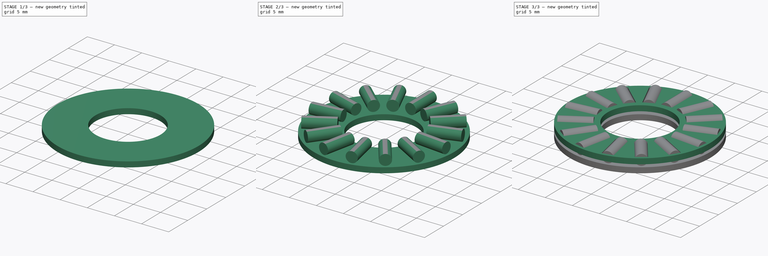
[diagram: build sequence overview — one tinted view per stage of 3, left to right]
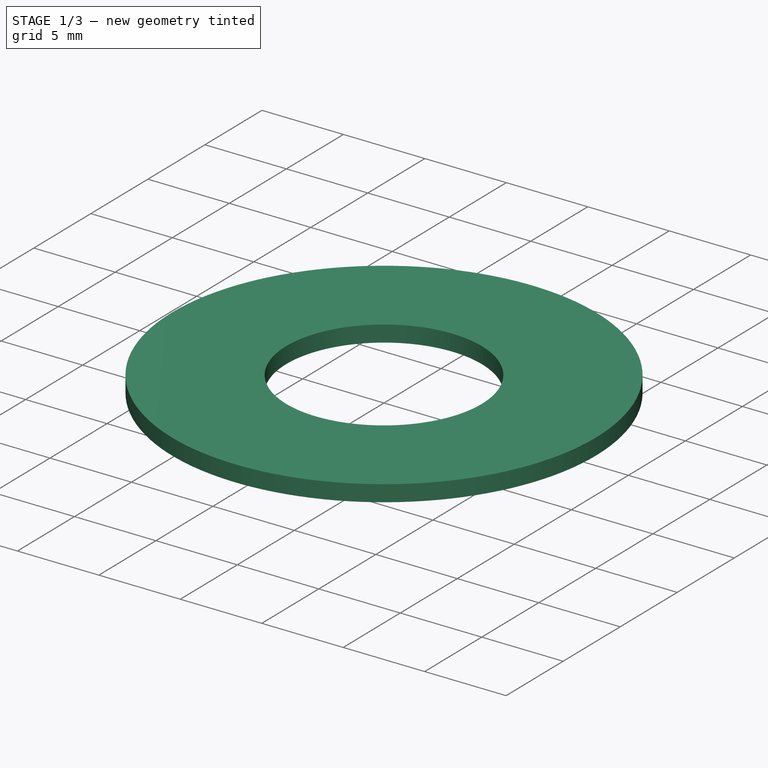
[diagram: stage 1 of 3 — iso view after this stage's code; geometry added in this stage tinted green]
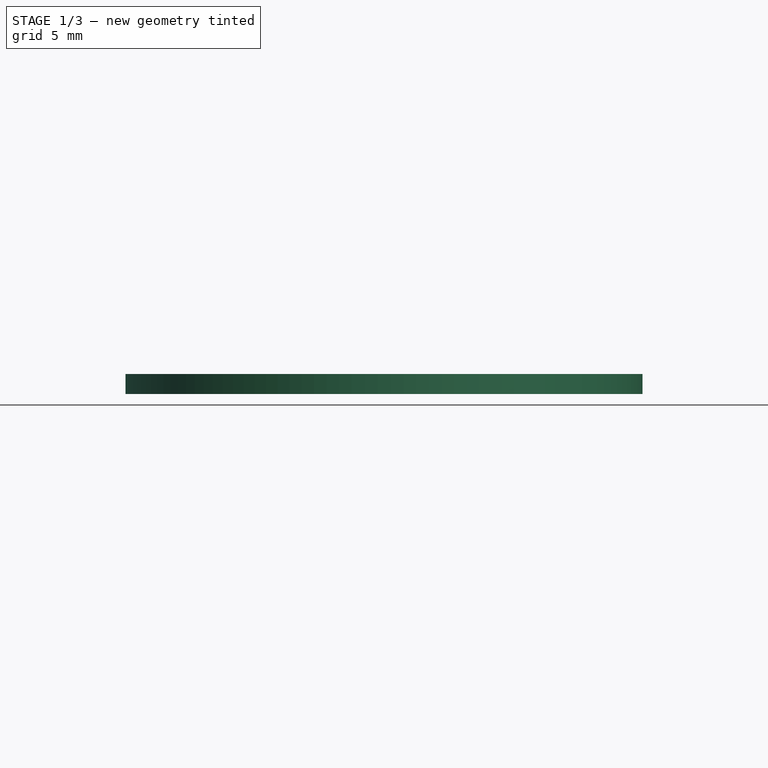
[diagram: stage 1 of 3 — front view after this stage's code; geometry added in this stage tinted green]
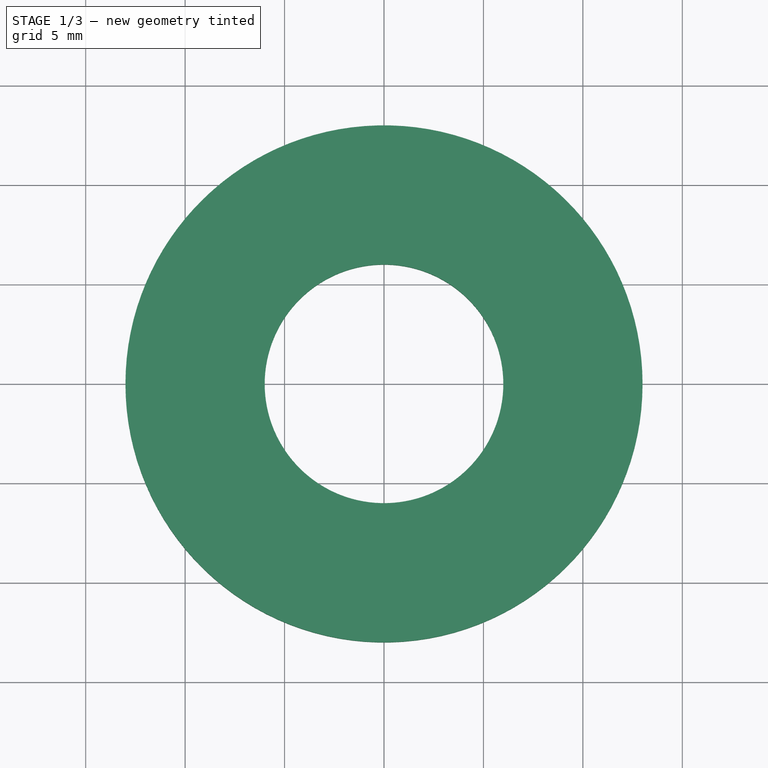
[diagram: stage 1 of 3 — top view after this stage's code; geometry added in this stage tinted green]
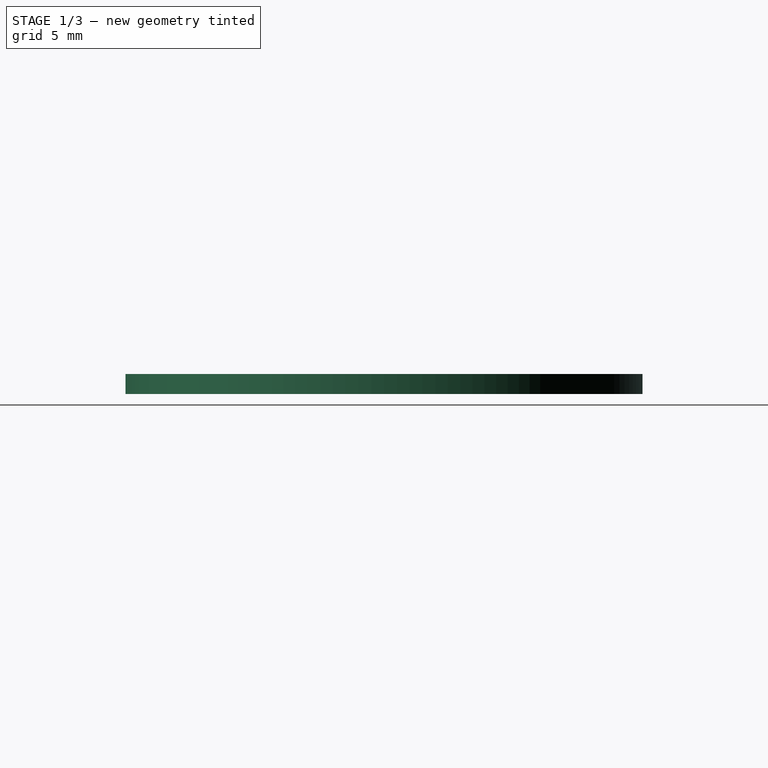
[diagram: stage 1 of 3 — right view after this stage's code; geometry added in this stage tinted green]
FCSTD DOCUMENT  (FreeCAD 0.19R24291 (Git))
Label: parametric_axial_bearing
License: All rights reserved
LicenseURL: http://en.wikipedia.org/wiki/All_rights_reserved
objects: Part::FeaturePython×3, Sketcher::SketchObject×2, Spreadsheet::Sheet×1, PartDesign::Pad×1, PartDesign::Pocket×1, PartDesign::PolarPattern×1, PartDesign::Body×1, Part::Cylinder×1
note: 12 computed .brp shape members not serialized (recipe doc carries the construction recipe); baked Part::Feature solids carry a one-line shape summary decoded from their .brp

FEATURE [Spreadsheet::Sheet] Spreadsheet
  cells = B2=D; C2(D)=26; B3=d; C3(d)=12; B4=Dw; C4(Dw)=2; B5=Ea; C5(Ea)=14; B6=Eb; C6(Eb)=25; B7=w; C7(w)=1; B8=n; C8(n)=15; D8=(Number of cylinders)
FEATURE [Sketcher::SketchObject] Sketch
  FullyConstrained = true
  MapMode = 5
  Support = -> [XY_Plane]
  expr: Constraints[2] = Spreadsheet.d / 2
  expr: Constraints[3] = Spreadsheet.D / 2
  sketch-geometry (2):
    g0: Circle CenterX=0 CenterY=0 CenterZ=0 NormalX=0 NormalY=0 NormalZ=1 AngleXU=0 Radius=13
    g1: Circle CenterX=0 CenterY=0 CenterZ=0 NormalX=0 NormalY=0 NormalZ=1 AngleXU=0 Radius=6
  constraints (4):
    c: Coincident(g0,g-1)
    c: Coincident(g1,g-1)
    c: Radius(g1) = 6
    c: Radius(g0) = 13
FEATURE [PartDesign::Pad] Pad
  AllowMultiFace = false
  Direction = (1,1,1)
  Length = 1
  Length2 = 100
  Midplane = true
  Profile = -> Sketch
  Refine = true
  Type = 0
  expr: Length = Spreadsheet.w
FEATURE [Part::FeaturePython] Clone  label="TopWasher"  # Draft clone (typed FeaturePython)
  AttacherType = Attacher::AttachEngine3D
  Fuse = false
  Objects = -> [Pad]
  Placement = pos=(0,0,1.5) rot=(0,0,1;0rad)
  Scale = (1,1,1)
  expr: .Placement.Base.z = Spreadsheet.w / 2 + Spreadsheet.Dw / 2
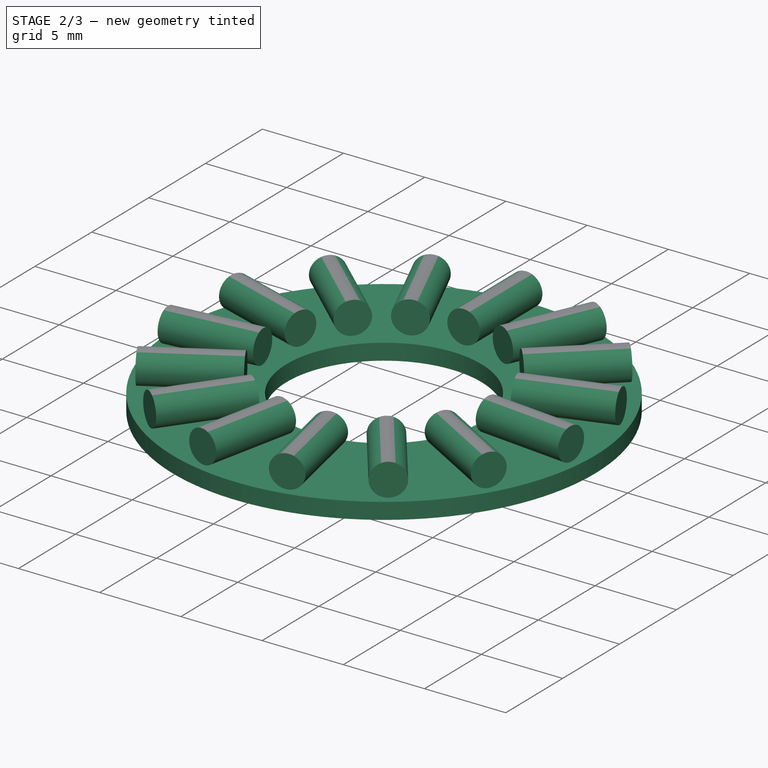
[diagram: stage 2 of 3 — iso view after this stage's code; geometry added in this stage tinted green]
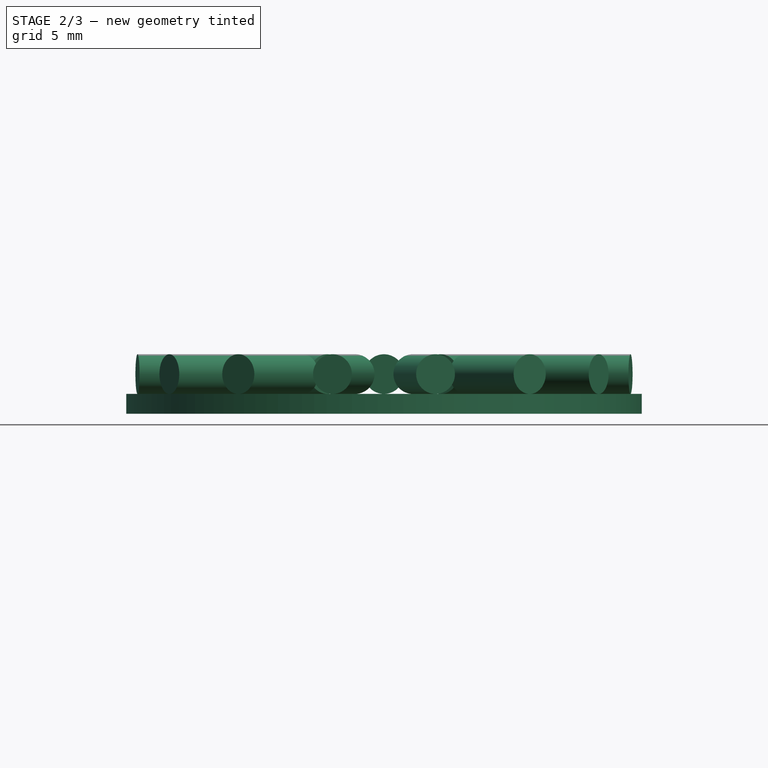
[diagram: stage 2 of 3 — front view after this stage's code; geometry added in this stage tinted green]
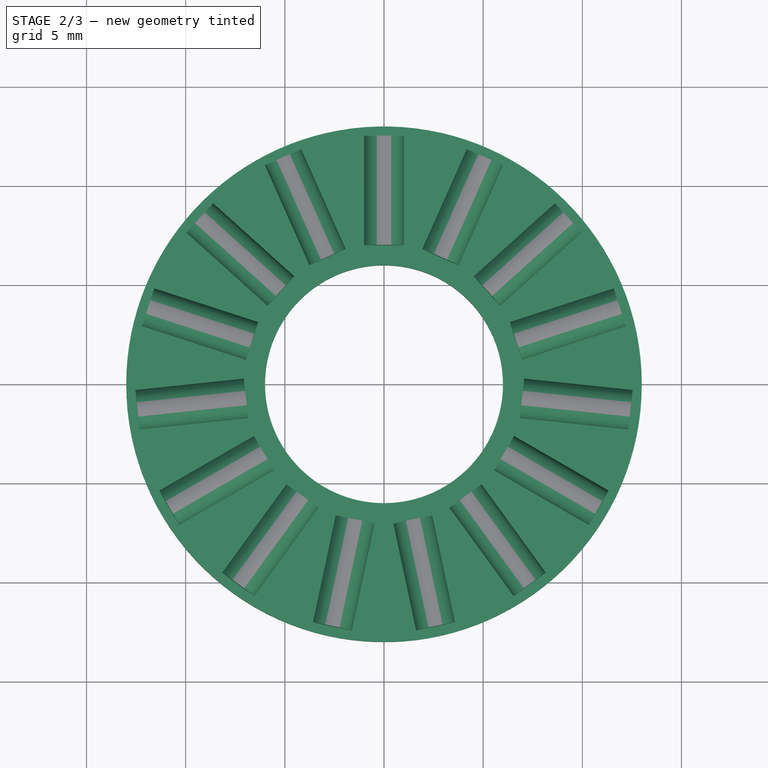
[diagram: stage 2 of 3 — top view after this stage's code; geometry added in this stage tinted green]
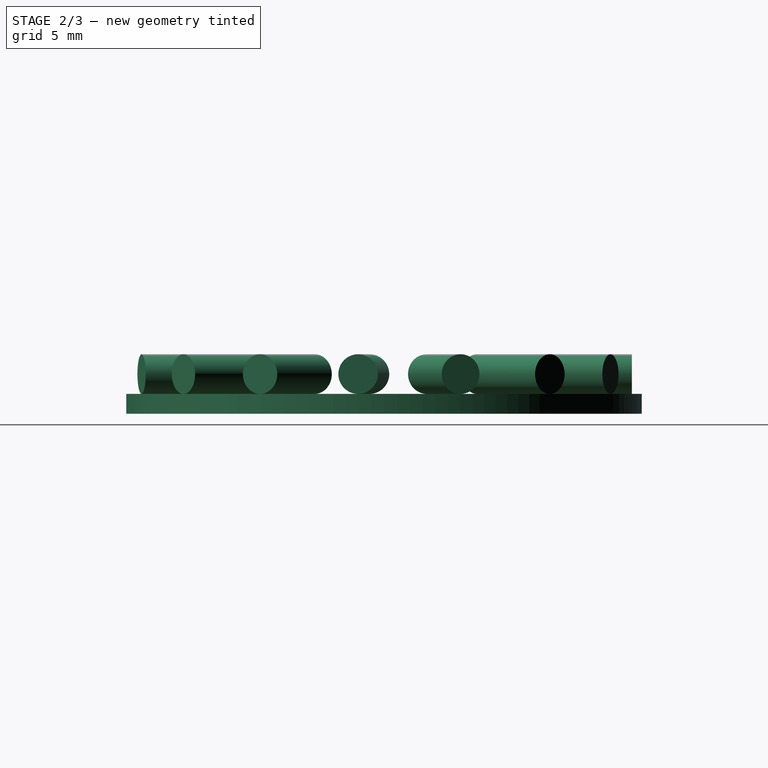
[diagram: stage 2 of 3 — right view after this stage's code; geometry added in this stage tinted green]
FEATURE [PartDesign::Body] Body  label="BearingBody"
  Group = -> [Sketch,Pad,Sketch001,Pocket,PolarPattern]
  Origin = -> Origin
  Tip = -> PolarPattern
FEATURE [Part::Cylinder] Cylinder
  Angle = 360
  AttacherType = Attacher::AttachEngine3D
  Height = 5.5
  Placement = pos=(0,7,0) rot=(-1,0,0;1.5708rad)
  Radius = 1
  expr: Radius = Spreadsheet.Dw / 2
  expr: Height = (Spreadsheet.Eb - Spreadsheet.Ea) / 2
  expr: .Placement.Base.y = Spreadsheet.Ea / 2
FEATURE [Part::FeaturePython] Array  label="Cylinders"  # Draft array (typed FeaturePython)
  Angle = 360
  ArrayType = 1
  Axis = (0,0,1)
  Base = -> Cylinder
  Center = (0,0,0)
  Fuse = false
  IntervalAxis = (0,0,0)
  IntervalX = (1,0,0)
  IntervalY = (0,1,0)
  IntervalZ = (0,0,0)
  NumberPolar = 15
  NumberX = 2
  NumberY = 2
  NumberZ = 1
  expr: NumberPolar = Spreadsheet.n
FEATURE [Part::FeaturePython] Clone001  label="BottomWasher"  # Draft clone (typed FeaturePython)
  AttacherType = Attacher::AttachEngine3D
  Fuse = false
  Objects = -> [Clone]
  Placement = pos=(0,0,-1.5) rot=(0,0,1;0rad)
  Scale = (1,1,1)
  expr: .Placement.Base.z = -(Spreadsheet.w / 2 + Spreadsheet.Dw / 2)
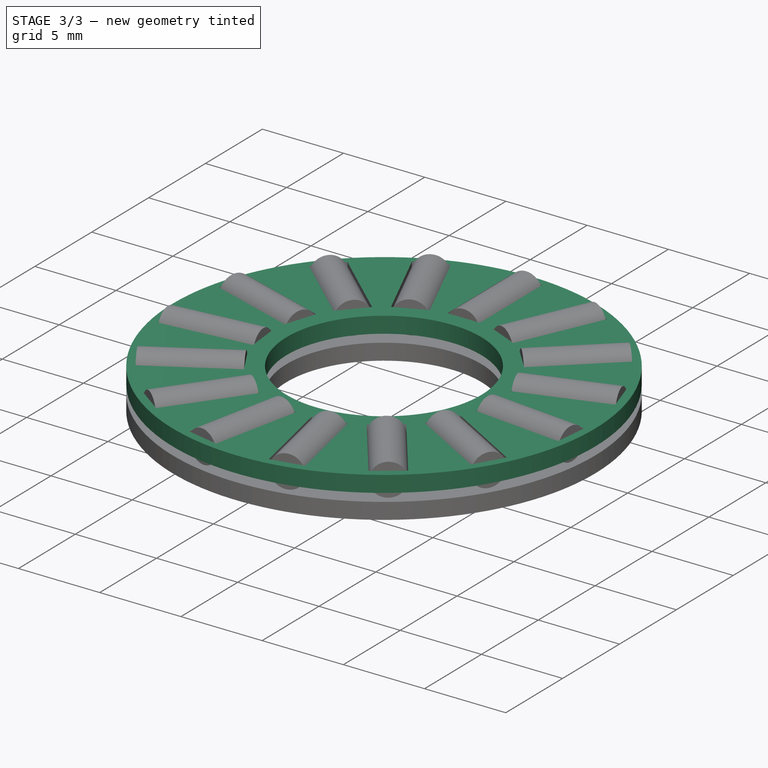
[diagram: stage 3 of 3 — iso view after this stage's code; geometry added in this stage tinted green]
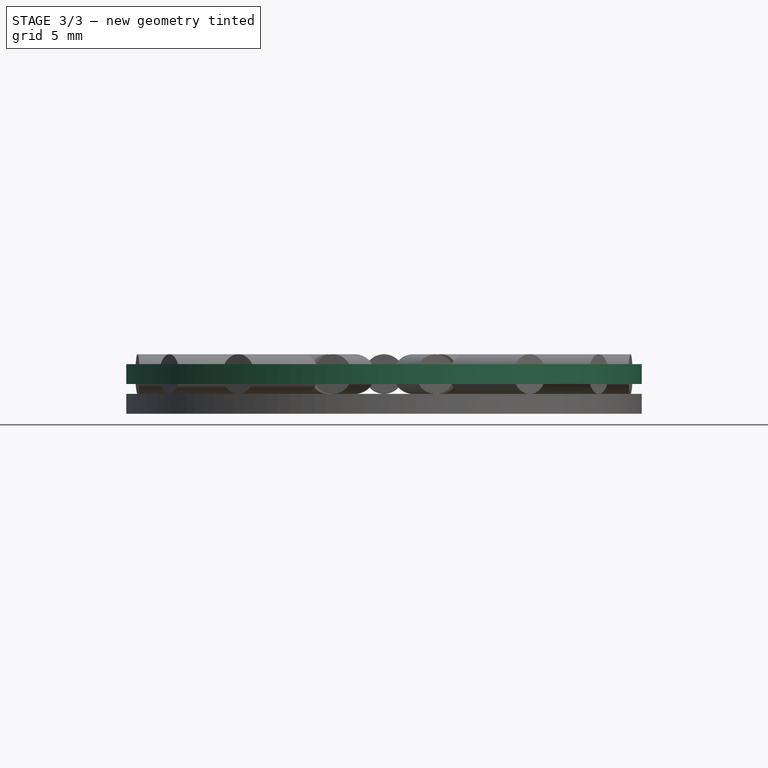
[diagram: stage 3 of 3 — front view after this stage's code; geometry added in this stage tinted green]
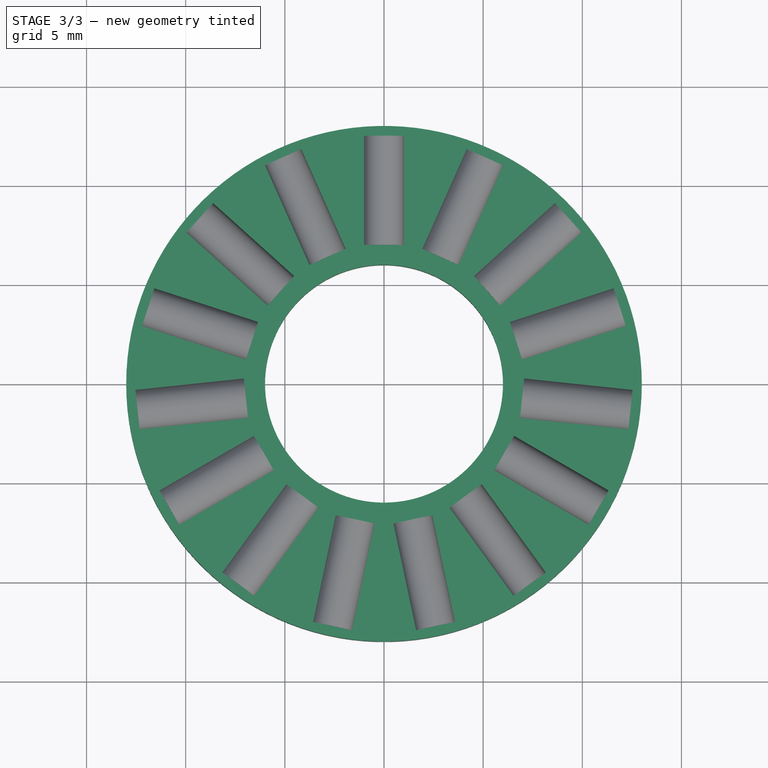
[diagram: stage 3 of 3 — top view after this stage's code; geometry added in this stage tinted green]
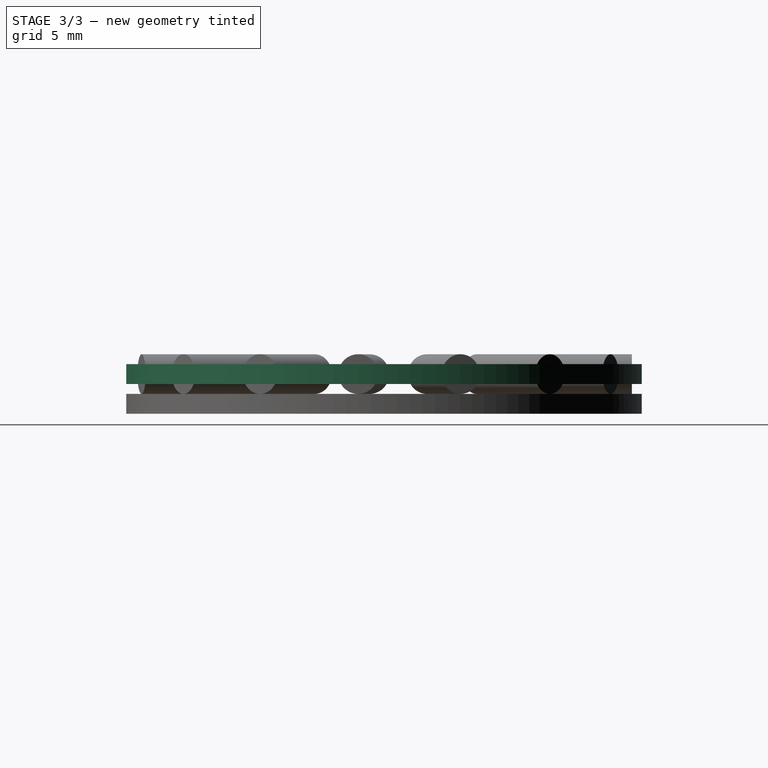
[diagram: stage 3 of 3 — right view after this stage's code; geometry added in this stage tinted green]
FEATURE [Sketcher::SketchObject] Sketch001
  FullyConstrained = true
  MapMode = 5
  Placement = pos=(0,0,0.5) rot=(0,0,1;0rad)
  Support = -> [Pad]
  expr: Constraints[8] = Spreadsheet.Dw
  expr: Constraints[9] = (Spreadsheet.Eb - Spreadsheet.Ea) / 2
  expr: Constraints[10] = Spreadsheet.Ea / 2
  sketch-geometry (4):
    g0: LineSegment StartX=-1 StartY=12.5 StartZ=0 EndX=1 EndY=12.5 EndZ=0
    g1: LineSegment StartX=1 StartY=12.5 StartZ=0 EndX=1 EndY=7 EndZ=0
    g2: LineSegment StartX=1 StartY=7 StartZ=0 EndX=-1 EndY=7 EndZ=0
    g3: LineSegment StartX=-1 StartY=7 StartZ=0 EndX=-1 EndY=12.5 EndZ=0
  constraints (11):
    c: Coincident(g0,g1)
    c: Coincident(g1,g2)
    c: Coincident(g2,g3)
    c: Coincident(g3,g0)
    c: Horizontal(g0)
    c: Vertical(g1)
    c: Vertical(g3)
    c: Symmetric(g1,g2,g-2)
    c: DistanceX(g2,g2) = 2
    c: DistanceY(g1,g1) = 5.5
    c: DistanceY(g-1,g1) = 7
FEATURE [PartDesign::Pocket] Pocket
  AllowMultiFace = false
  BaseFeature = -> Pad
  Length = 5
  Length2 = 100
  Profile = -> Sketch001
  Refine = true
  Type = 0
FEATURE [PartDesign::PolarPattern] PolarPattern
  Angle = 360
  Axis = -> Sketch001 [N_Axis]
  BaseFeature = -> Pocket
  Occurrences = 15
  Originals = -> [Pocket]
  Refine = true
  expr: Occurrences = Spreadsheet.n
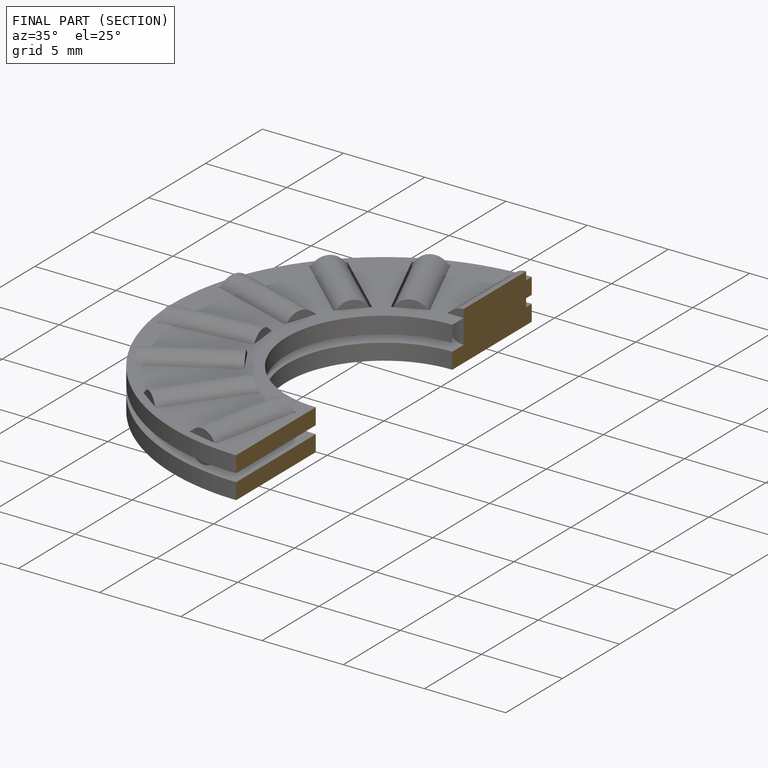
[diagram: finished part — half-section view (interior)]
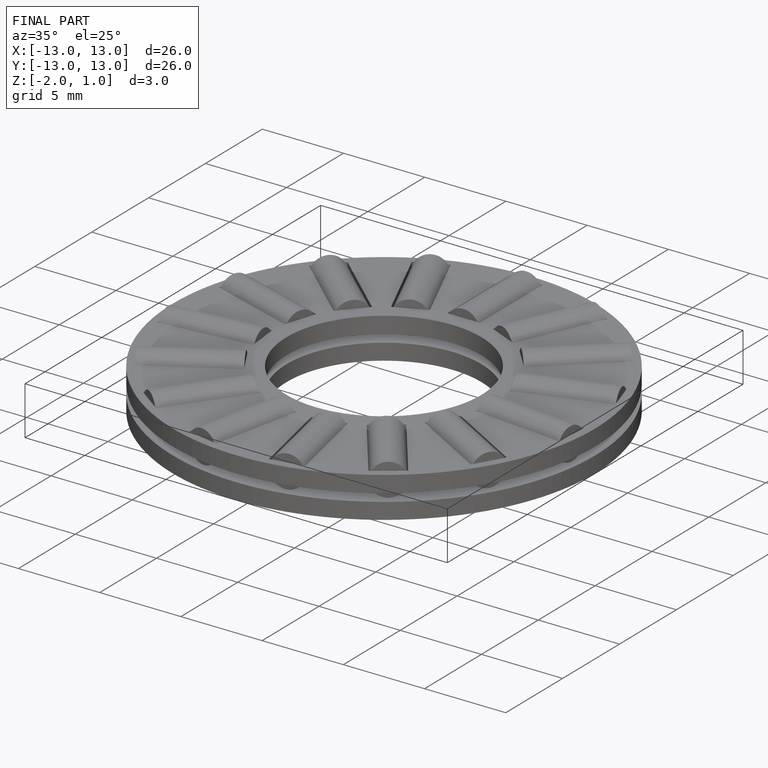
[diagram: finished part — iso view with bounding-box wireframe]
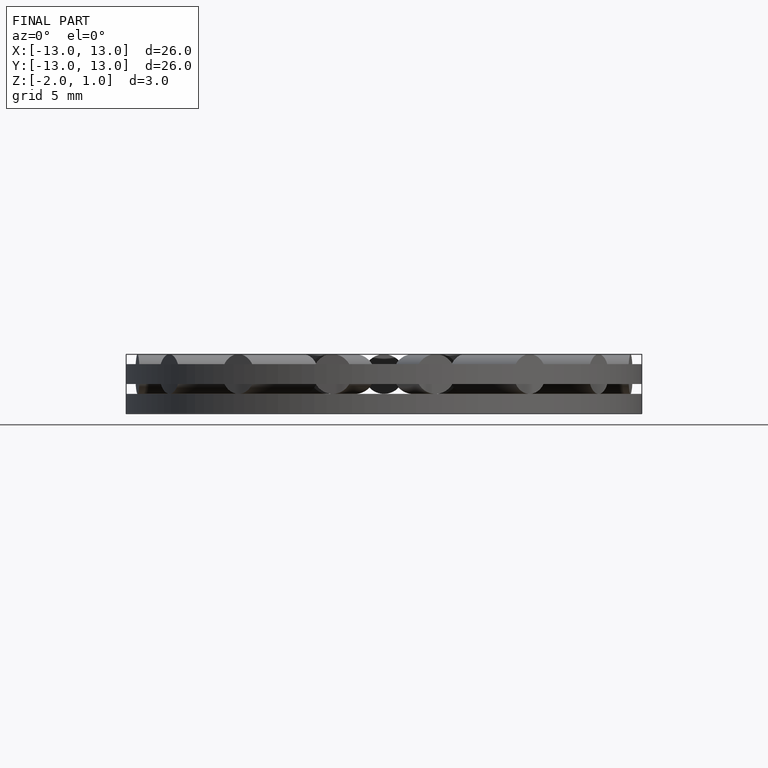
[diagram: finished part — front view with bounding-box wireframe]
